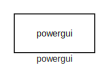
[diagram: root canvas - part 1/2, top right region]
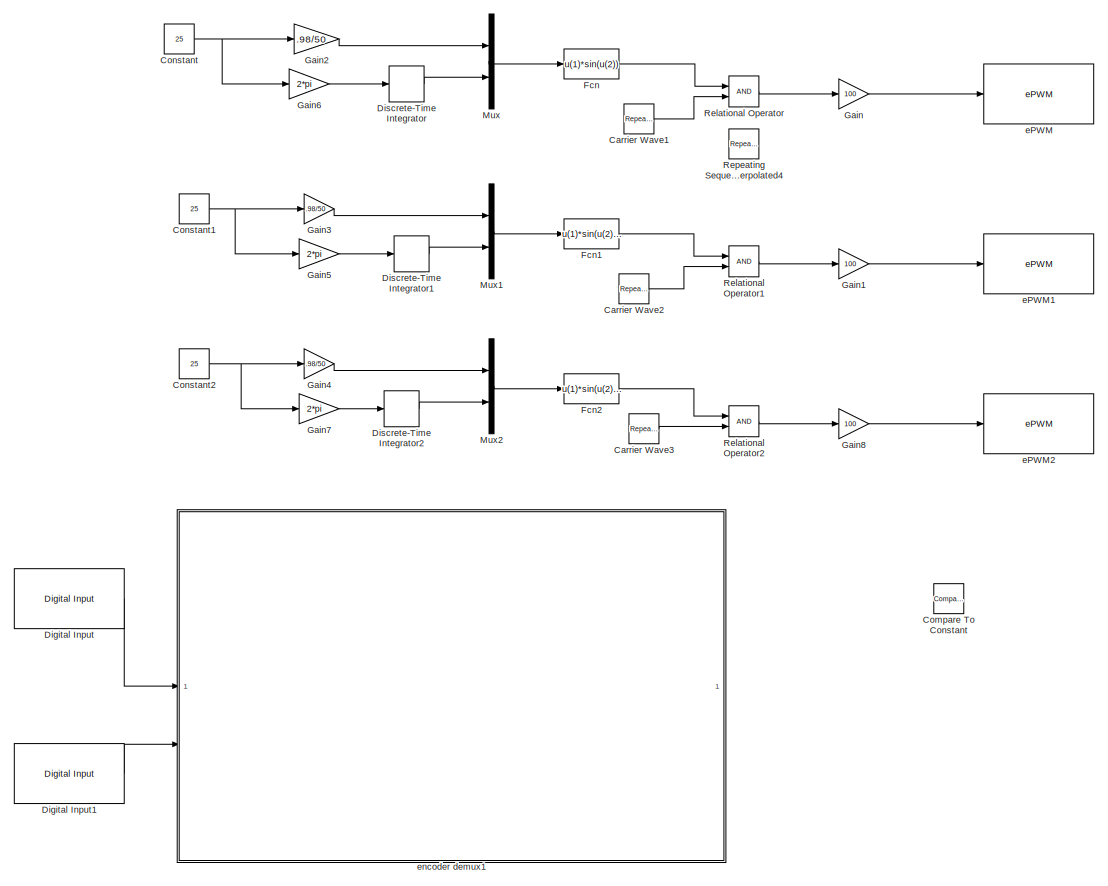
[diagram: root canvas - part 2/2, left side, full height]
MODEL slx_a8c8aba3eea7
KIND model
CONFIG AbsTol = auto
CONFIG EnableMultiTasking = on
CONFIG FixedStep = auto
CONFIG MaxStep = 5e-5
CONFIG MinStep = auto
CONFIG RelTol = 1e-5
CONFIG SampleTimeConstraint = Unconstrained
CONFIG SolverName = FixedStepDiscrete
CONFIG StartTime = 0.0
CONFIG StopTime = Inf
BLOCK [Reference] Carrier Wave1  REF=simulink/Sources/Repeating
Sequence
  SourceBlock = simulink/Sources/Repeating\nSequence
  SourceType = Repeating table
BLOCK [Reference] Carrier Wave2  REF=simulink/Sources/Repeating
Sequence
  SourceBlock = simulink/Sources/Repeating\nSequence
  SourceType = Repeating table
BLOCK [Reference] Carrier Wave3  REF=simulink/Sources/Repeating
Sequence
  SourceBlock = simulink/Sources/Repeating\nSequence
  SourceType = Repeating table
BLOCK [Reference] Compare To Constant  REF=simulink/Logic and Bit
Operations/Compare
To Constant
  Commented = on
  SourceBlock = simulink/Logic and Bit\nOperations/Compare\nTo Constant
  SourceType = Compare To Constant
BLOCK [Constant] Constant
  Value = 25
BLOCK [Constant] Constant1
  Value = 25
BLOCK [Constant] Constant2
  Value = 25
BLOCK [Reference] Digital Input  REF=c2837xDlib/Digital Input
  Commented = on
  SourceBlock = c2837xDlib/Digital Input
  SourceType = F2837x GPIO Digital Input
  UserDataPersistent = on
BLOCK [Reference] Digital Input1  REF=c2837xDlib/Digital Input
  Commented = on
  SourceBlock = c2837xDlib/Digital Input
  SourceType = F2837x GPIO Digital Input
  UserDataPersistent = on
BLOCK [DiscreteIntegrator] Discrete-Time Integrator
  ICPrevOutput = DiscIntNeverNeededParam
  ICPrevScaledInput = DiscIntNeverNeededParam
  InitialConditionSetting = Auto
  SampleTime = -1
BLOCK [DiscreteIntegrator] Discrete-Time Integrator1
  ICPrevOutput = DiscIntNeverNeededParam
  ICPrevScaledInput = DiscIntNeverNeededParam
  InitialConditionSetting = Auto
  SampleTime = -1
BLOCK [DiscreteIntegrator] Discrete-Time Integrator2
  ICPrevOutput = DiscIntNeverNeededParam
  ICPrevScaledInput = DiscIntNeverNeededParam
  InitialConditionSetting = Auto
  SampleTime = -1
BLOCK [Fcn] Fcn
  Expr = u(1)*sin(u(2))
BLOCK [Fcn] Fcn1
  Expr = u(1)*sin(u(2)-(2*pi/3))
BLOCK [Fcn] Fcn2
  Expr = u(1)*sin(u(2)+(2*pi/3))
BLOCK [Gain] Gain
  Gain = 100
BLOCK [Gain] Gain1
  Gain = 100
BLOCK [Gain] Gain2
  Gain = .98/50
BLOCK [Gain] Gain3
  Gain = .98/50
BLOCK [Gain] Gain4
  Gain = .98/50
BLOCK [Gain] Gain5
  Gain = 2*pi
BLOCK [Gain] Gain6
  Gain = 2*pi
BLOCK [Gain] Gain7
  Gain = 2*pi
BLOCK [Gain] Gain8
  Gain = 100
BLOCK [Mux] Mux
  DisplayOption = bar
  Inputs = 2
BLOCK [Mux] Mux1
  DisplayOption = bar
  Inputs = 2
BLOCK [Mux] Mux2
  DisplayOption = bar
  Inputs = 2
BLOCK [RelationalOperator] Relational Operator
  InputSameDT = off
  OutDataTypeStr = boolean
  RndMeth = Simplest
BLOCK [RelationalOperator] Relational Operator1
  InputSameDT = off
  OutDataTypeStr = boolean
  RndMeth = Simplest
BLOCK [RelationalOperator] Relational Operator2
  InputSameDT = off
  OutDataTypeStr = boolean
  RndMeth = Simplest
BLOCK [Reference] Repeating Sequence Interpolated4  REF=simulink/Sources/Repeating
Sequence
Interpolated
  SourceBlock = simulink/Sources/Repeating\nSequence\nInterpolated
  SourceType = Repeating Sequence Interpolated
BLOCK [Reference] ePWM  REF=c2802xlib/ePWM
  SourceBlock = c2802xlib/ePWM
  SourceType = ePWM Type 1-4
  UserDataPersistent = on
BLOCK [Reference] ePWM1  REF=c2802xlib/ePWM
  SourceBlock = c2802xlib/ePWM
  SourceType = ePWM Type 1-4
  UserDataPersistent = on
BLOCK [Reference] ePWM2  REF=c2802xlib/ePWM
  SourceBlock = c2802xlib/ePWM
  SourceType = ePWM Type 1-4
  UserDataPersistent = on
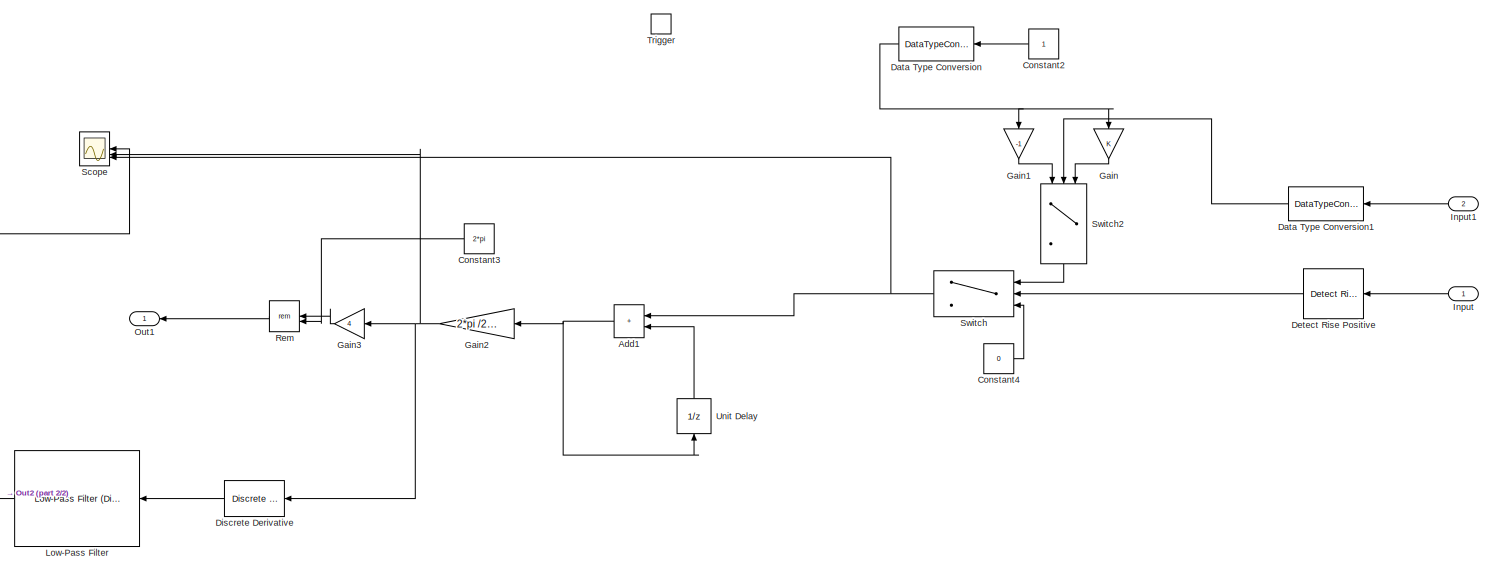
[diagram: encoder demux1 - part 1/2, most of the canvas]
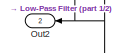
[diagram: encoder demux1 - part 2/2, bottom left region]
BLOCK [SubSystem] encoder demux1
  Commented = on
BLOCK [Sum] encoder demux1/Add1
  IconShape = rectangular
BLOCK [Constant] encoder demux1/Constant2
BLOCK [Constant] encoder demux1/Constant3
  Value = 2*pi
BLOCK [Constant] encoder demux1/Constant4
  Value = 0
BLOCK [DataTypeConversion] encoder demux1/Data Type Conversion
  RndMeth = Floor
  SaturateOnIntegerOverflow = off
BLOCK [DataTypeConversion] encoder demux1/Data Type Conversion1
  RndMeth = Floor
  SaturateOnIntegerOverflow = off
BLOCK [Reference] encoder demux1/Detect Rise Positive  REF=simulink/Logic and Bit
Operations/Detect Rise
Positive
  SourceBlock = simulink/Logic and Bit\nOperations/Detect Rise\nPositive
  SourceType = Detect Rise Positive
BLOCK [Reference] encoder demux1/Discrete Derivative  REF=simulink/Discrete/Discrete Derivative
  SourceBlock = simulink/Discrete/Discrete Derivative
  SourceType = Discrete Derivative
BLOCK [Gain] encoder demux1/Gain
  NameLocation = right
BLOCK [Gain] encoder demux1/Gain1
  Gain = -1
  NameLocation = right
BLOCK [Gain] encoder demux1/Gain2
  Gain = 2*pi /2000
BLOCK [Gain] encoder demux1/Gain3
  Gain = 4
BLOCK [Inport] encoder demux1/Input
BLOCK [Inport] encoder demux1/Input1
  Port = 2
BLOCK [Reference] encoder demux1/Low-Pass Filter   REF=eeGeneralControl/Low-Pass Filter
(Discrete or Continuous)
  SourceBlock = eeGeneralControl/Low-Pass Filter\n(Discrete or Continuous)
  SourceType = Low-Pass Filter (Discrete or Continuous)
BLOCK [Outport] encoder demux1/Out1
BLOCK [Outport] encoder demux1/Out2
  Port = 2
BLOCK [Math] encoder demux1/Rem
  Operator = rem
BLOCK [Scope] encoder demux1/Scope
  Floating = off
  NumInputPorts = 3
  ScopeSpecificationString = Simulink.scopes.TimeScopeBlockCfg('CurrentConfiguration', extmgr.ConfigurationSet(extmgr.Configuration('Core','General UI',true),extmgr.Configuration('Core','Source UI',true),extmgr.Configuration('Sources','WiredSimulink',true,'DataLoggingVariableName','ScopeData2'),extmgr.Configuration('Visuals','Time Domain',true,'SerializedDisplays',{struct('MinYLimReal','-9.05726','MaxYLimReal','1.00656','YLab...<+2849ch>
BLOCK [Switch] encoder demux1/Switch
  Criteria = u2 > Threshold
  InputSameDT = off
  SaturateOnIntegerOverflow = off
BLOCK [Switch] encoder demux1/Switch2
  Criteria = u2 > Threshold
  InputSameDT = off
  NameLocation = right
  SaturateOnIntegerOverflow = off
BLOCK [TriggerPort] encoder demux1/Trigger
  PortDimensions = 1
  StatesWhenEnabling = held
  TriggerType = function-call
  VariantControl = Variant
BLOCK [UnitDelay] encoder demux1/Unit Delay
  HasFrameUpgradeWarning = on
  NameLocation = right
  SampleTime = -1
BLOCK [Reference] powergui  REF=spspowerguiLib/powergui
  LibrarySourceBlock = sps_lib/powergui
  Priority = 1
  SourceBlock = spspowerguiLib/powergui
  SourceType = PSB option menu block
LINE Carrier Wave1:1 -> Relational Operator:2
LINE Carrier Wave2:1 -> Relational Operator1:2
LINE Carrier Wave3:1 -> Relational Operator2:2
NET Constant1:1 -> Gain3:1, Gain5:1
NET Constant2:1 -> Gain4:1, Gain7:1
NET Constant:1 -> Gain2:1, Gain6:1
LINE Digital Input1:1 -> encoder demux1:2
LINE Digital Input:1 -> encoder demux1:1
LINE Discrete-Time Integrator1:1 -> Mux1:2
LINE Discrete-Time Integrator2:1 -> Mux2:2
LINE Discrete-Time Integrator:1 -> Mux:2
LINE Fcn1:1 -> Relational Operator1:1
LINE Fcn2:1 -> Relational Operator2:1
LINE Fcn:1 -> Relational Operator:1
LINE Gain1:1 -> ePWM1:1
LINE Gain2:1 -> Mux:1
LINE Gain3:1 -> Mux1:1
LINE Gain4:1 -> Mux2:1
LINE Gain5:1 -> Discrete-Time Integrator1:1
LINE Gain6:1 -> Discrete-Time Integrator:1
LINE Gain7:1 -> Discrete-Time Integrator2:1
LINE Gain8:1 -> ePWM2:1
LINE Gain:1 -> ePWM:1
LINE Mux1:1 -> Fcn1:1
LINE Mux2:1 -> Fcn2:1
LINE Mux:1 -> Fcn:1
LINE Relational Operator1:1 -> Gain1:1
LINE Relational Operator2:1 -> Gain8:1
LINE Relational Operator:1 -> Gain:1
NET encoder demux1/Add1:1 -> encoder demux1/Gain2:1, encoder demux1/Unit Delay:1
LINE encoder demux1/Constant2:1 -> encoder demux1/Data Type Conversion:1
LINE encoder demux1/Constant3:1 -> encoder demux1/Rem:2
LINE encoder demux1/Constant4:1 -> encoder demux1/Switch:3
LINE encoder demux1/Data Type Conversion1:1 -> encoder demux1/Switch2:2
NET encoder demux1/Data Type Conversion:1 -> encoder demux1/Gain1:1, encoder demux1/Gain:1
LINE encoder demux1/Detect Rise Positive:1 -> encoder demux1/Switch:2
LINE encoder demux1/Discrete Derivative:1 -> encoder demux1/Low-Pass Filter :1
LINE encoder demux1/Gain1:1 -> encoder demux1/Switch2:1
NET encoder demux1/Gain2:1 -> encoder demux1/Discrete Derivative:1, encoder demux1/Gain3:1, encoder demux1/Scope:2
LINE encoder demux1/Gain3:1 -> encoder demux1/Rem:1
LINE encoder demux1/Gain:1 -> encoder demux1/Switch2:3
LINE encoder demux1/Input1:1 -> encoder demux1/Data Type Conversion1:1
LINE encoder demux1/Input:1 -> encoder demux1/Detect Rise Positive:1
NET encoder demux1/Low-Pass Filter :1 -> encoder demux1/Out2:1, encoder demux1/Scope:1
LINE encoder demux1/Rem:1 -> encoder demux1/Out1:1
LINE encoder demux1/Switch2:1 -> encoder demux1/Switch:1
NET encoder demux1/Switch:1 -> encoder demux1/Add1:1, encoder demux1/Scope:3
LINE encoder demux1/Unit Delay:1 -> encoder demux1/Add1:2
note: NET lines group one-source signal fan-out (src -> all destinations, sorted); 1:1 wires keep LINE
